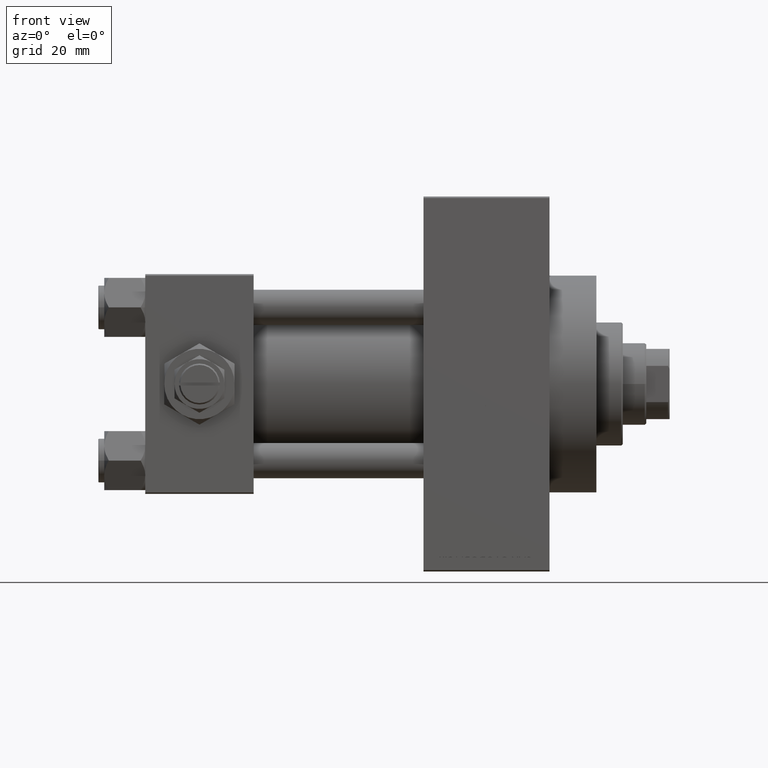
[diagram: clean part render]
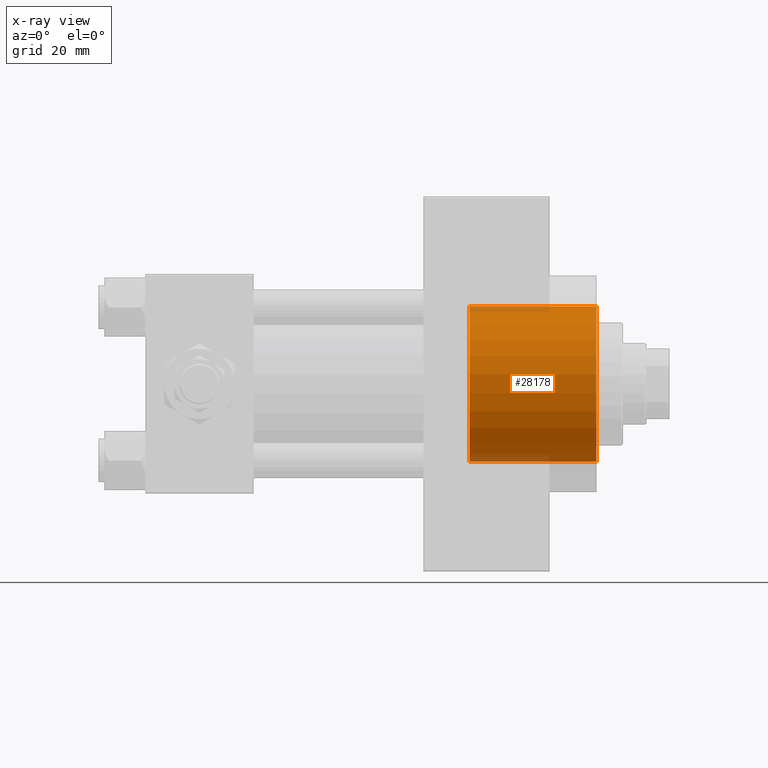
[diagram: x-ray — body ghosted, one internal face saturated and labeled with its STEP entity id]
A machine part, front view, then the same camera in x-ray: the body is ghosted and one INTERNAL B-rep face — a face not visible from any outside direction — is saturated and labeled: STEP entity #28178.
In plain terms, the highlighted cylindrical surface (partial cylindrical patch) has radius 26.5 mm, axis along (1, 0, 0).
Its self-contained STEP definition (entity closure, byte-faithful):
#979 = CIRCLE ( 'NONE', #22369, 26.50000000000000355 ) ;
#1125 = EDGE_LOOP ( 'NONE', ( #11507, #4857, #34700, #15413 ) ) ;
#1186 = FACE_OUTER_BOUND ( 'NONE', #1125, .T. ) ;
#1267 = CARTESIAN_POINT ( 'NONE',  ( 154.0000000000000284, 3.245314017740486554E-15, 26.50000000000000355 ) ) ;
#1549 = EDGE_CURVE ( 'NONE', #12313, #23380, #40115, .T. ) ;
#1663 = DIRECTION ( 'NONE',  ( 0.000000000000000000, 0.000000000000000000, -1.000000000000000000 ) ) ;
#1791 = DIRECTION ( 'NONE',  ( 1.000000000000000000, -0.000000000000000000, -0.000000000000000000 ) ) ;
#4857 = ORIENTED_EDGE ( 'NONE', *, *, #28439, .T. ) ;
#5426 = CARTESIAN_POINT ( 'NONE',  ( 110.7400000000000375, 0.000000000000000000, -26.50000000000000355 ) ) ;
#5978 = DIRECTION ( 'NONE',  ( 1.000000000000000000, 0.000000000000000000, 0.000000000000000000 ) ) ;
#8381 = DIRECTION ( 'NONE',  ( 0.000000000000000000, 0.000000000000000000, -1.000000000000000000 ) ) ;
#11507 = ORIENTED_EDGE ( 'NONE', *, *, #1549, .F. ) ;
#12313 = VERTEX_POINT ( 'NONE', #30309 ) ;
#13040 = EDGE_CURVE ( 'NONE', #24282, #29549, #979, .T. ) ;
#14300 = LINE ( 'NONE', #18756, #44046 ) ;
#15413 = ORIENTED_EDGE ( 'NONE', *, *, #47220, .F. ) ;
#15570 = CARTESIAN_POINT ( 'NONE',  ( 110.7400000000000375, 0.000000000000000000, 0.000000000000000000 ) ) ;
#16422 = CARTESIAN_POINT ( 'NONE',  ( 110.7400000000000375, 0.000000000000000000, -26.50000000000000355 ) ) ;
#18756 = CARTESIAN_POINT ( 'NONE',  ( 110.7400000000000375, 3.245314017740486554E-15, 26.50000000000000355 ) ) ;
#20009 = CARTESIAN_POINT ( 'NONE',  ( 154.0000000000000284, 0.000000000000000000, -26.50000000000000355 ) ) ;
#22369 = AXIS2_PLACEMENT_3D ( 'NONE', #31663, #44045, #1663 ) ;
#22629 = AXIS2_PLACEMENT_3D ( 'NONE', #15570, #34425, #8381 ) ;
#23380 = VERTEX_POINT ( 'NONE', #5426 ) ;
#24282 = VERTEX_POINT ( 'NONE', #1267 ) ;
#28178 = ADVANCED_FACE ( 'NONE', ( #1186 ), #42341, .F. ) ;
#28439 = EDGE_CURVE ( 'NONE', #12313, #24282, #14300, .T. ) ;
#29549 = VERTEX_POINT ( 'NONE', #20009 ) ;
#30309 = CARTESIAN_POINT ( 'NONE',  ( 110.7400000000000375, 3.245314017740486554E-15, 26.50000000000000355 ) ) ;
#31663 = CARTESIAN_POINT ( 'NONE',  ( 154.0000000000000284, 0.000000000000000000, 0.000000000000000000 ) ) ;
#34425 = DIRECTION ( 'NONE',  ( 1.000000000000000000, -0.000000000000000000, -0.000000000000000000 ) ) ;
#34700 = ORIENTED_EDGE ( 'NONE', *, *, #13040, .T. ) ;
#35989 = DIRECTION ( 'NONE',  ( 0.000000000000000000, 0.000000000000000000, -1.000000000000000000 ) ) ;
#40115 = CIRCLE ( 'NONE', #44070, 26.50000000000000355 ) ;
#42341 = CYLINDRICAL_SURFACE ( 'NONE', #22629, 26.50000000000000355 ) ;
#44045 = DIRECTION ( 'NONE',  ( 1.000000000000000000, 0.000000000000000000, 0.000000000000000000 ) ) ;
#44046 = VECTOR ( 'NONE', #45280, 1000.000000000000000 ) ;
#44070 = AXIS2_PLACEMENT_3D ( 'NONE', #47610, #5978, #35989 ) ;
#45280 = DIRECTION ( 'NONE',  ( 1.000000000000000000, -0.000000000000000000, -0.000000000000000000 ) ) ;
#45306 = VECTOR ( 'NONE', #1791, 1000.000000000000000 ) ;
#46901 = LINE ( 'NONE', #16422, #45306 ) ;
#47220 = EDGE_CURVE ( 'NONE', #23380, #29549, #46901, .T. ) ;
#47610 = CARTESIAN_POINT ( 'NONE',  ( 110.7400000000000375, 0.000000000000000000, 0.000000000000000000 ) ) ;